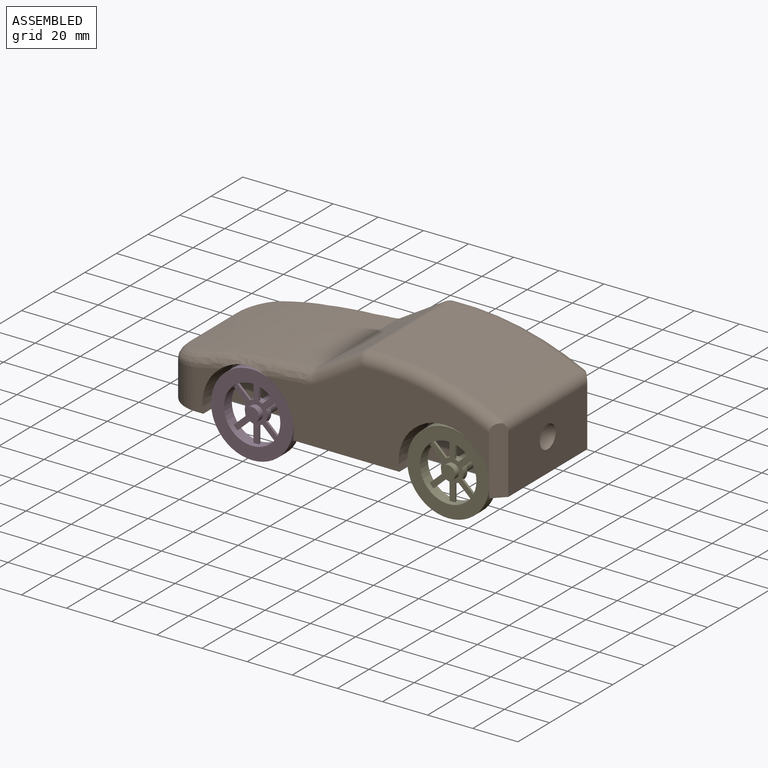
[diagram: assembled view]
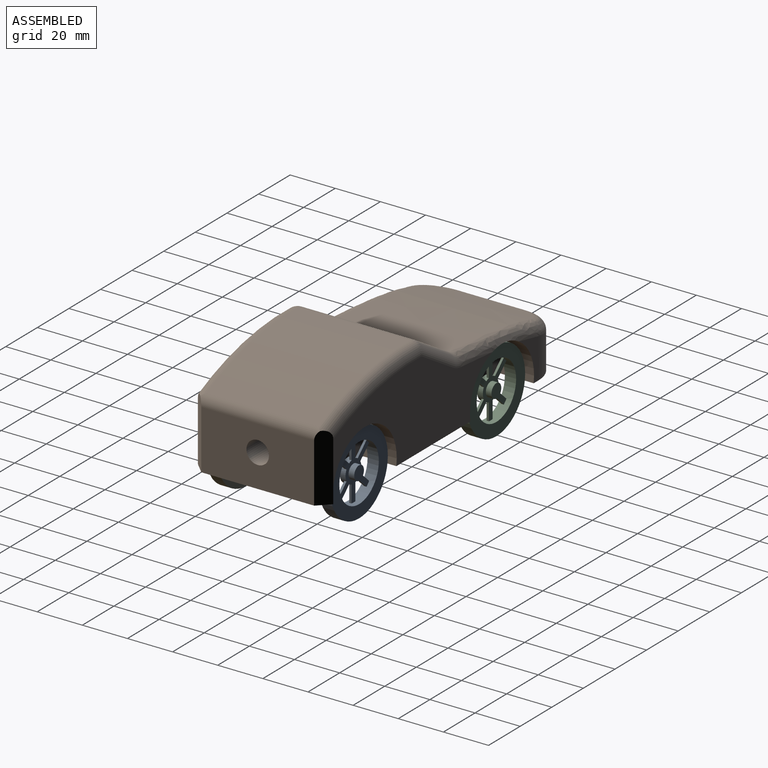
[diagram: assembled view, second angle]
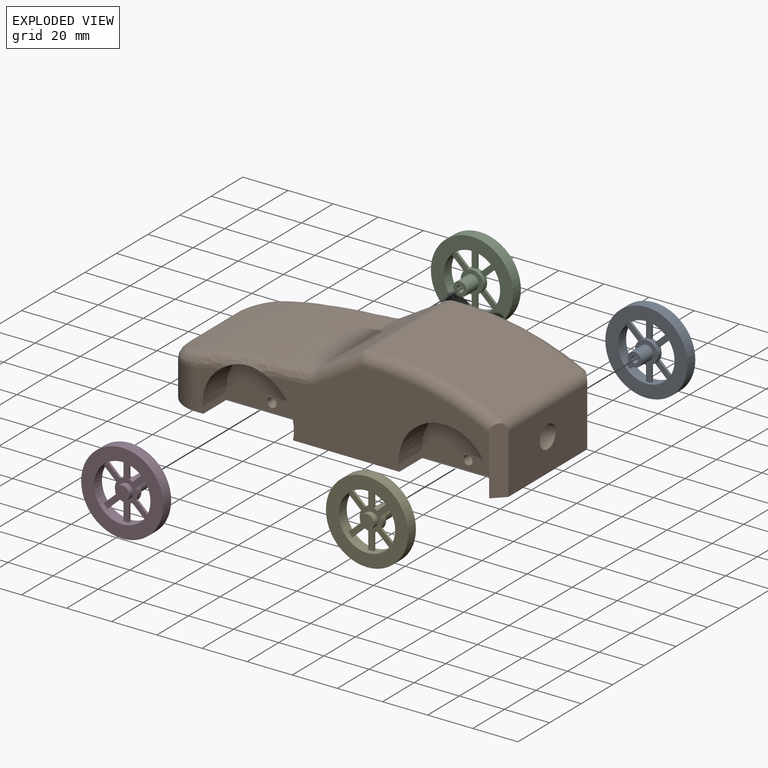
[diagram: exploded view]
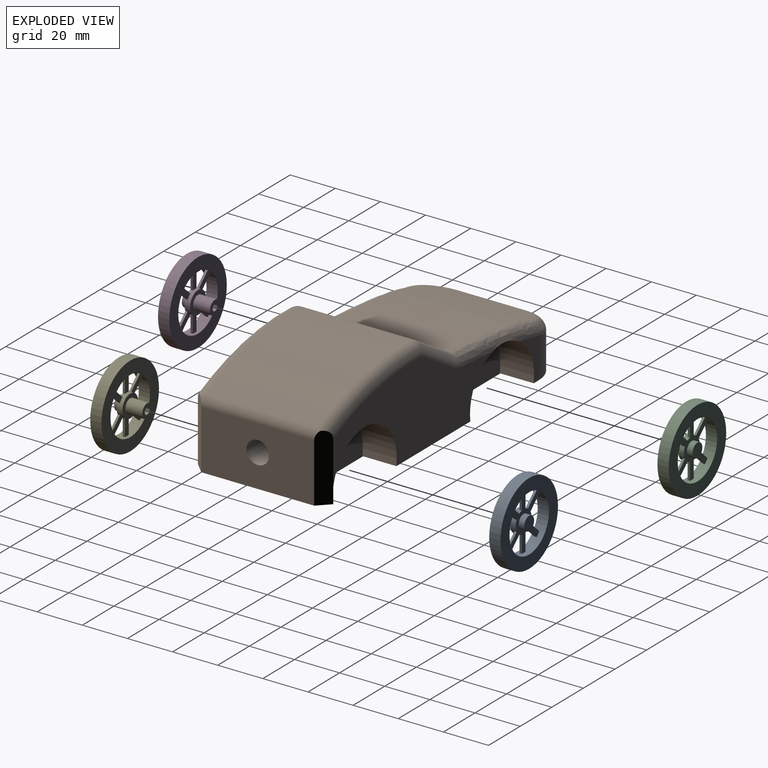
[diagram: exploded view, second angle]
ASSEMBLY  parts=5 mates=4
PART A: 31 faces, bbox 36.4x12.5x36.4 mm
  f0: cylinder r=3.1mm len=7.5mm, axis (0,-1,0), area 146.1mm2, adj f2,f5
  f1: cylinder r=1.5mm len=10mm, axis (0,-1,0), area 94.2mm2, adj f2,f3
  f2: plane 6.2x6.2mm, normal (0,-1,0), area 23.1mm2, adj f0,f1
  f3: plane 3x3mm, normal (0,-1,0), area 7.1mm2, adj f1
  f4: cylinder r=5mm len=10mm, axis (0,1,0), area 64mm2, adj f5,f6,f9,f10,f11,f12,f13,f14
  f5: plane 10x10mm, normal (0,-1,0), area 48.3mm2, adj f0,f4
  f6: plane 25.02x19.87mm, normal (0,1,0), area 156.8mm2, adj f4,f8,f9,f10,f12,f13,f15,f16
  f7: plane 6.18x6.18mm, normal (0,1,0), area 30mm2, adj f8
  f8: cylinder r=3.09mm len=6.18mm, axis (0,-1,0), area 48.5mm2, adj f6,f7
  f9: plane 5.55x5.17mm, normal (0.68,0,-0.73), area 7.6mm2, adj f4,f6,f11,f27
  f10: plane 5.55x5.17mm, normal (-0.68,0,0.73), area 7.6mm2, adj f4,f6,f11,f27
  f11: plane 7.19x6.93mm, normal (0,-1,0), area 18.1mm2, adj f4,f9,f10,f27
  f12: plane 7.59x1mm, normal (1,0,0), area 7.6mm2, adj f4,f6,f14,f27
  f13: plane 7.59x1mm, normal (-1,0,0), area 7.6mm2, adj f4,f6,f14,f27
  f14: plane 7.65x2.4mm, normal (0,-1,0), area 18.1mm2, adj f4,f12,f13,f27
  f15: plane 5.55x5.17mm, normal (-0.68,0,-0.73), area 7.6mm2, adj f4,f6,f17,f27
  f16: plane 5.55x5.17mm, normal (0.68,0,0.73), area 7.6mm2, adj f4,f6,f17,f27
  f17: plane 7.19x6.93mm, normal (0,-1,0), area 18.1mm2, adj f4,f15,f16,f27
  f18: plane 5.55x5.17mm, normal (-0.68,0,0.73), area 7.6mm2, adj f4,f6,f20,f27
  f19: plane 5.55x5.17mm, normal (0.68,0,-0.73), area 7.6mm2, adj f4,f6,f20,f27
  f20: plane 7.19x6.93mm, normal (0,-1,0), area 18.1mm2, adj f4,f18,f19,f27
  f21: plane 7.59x1mm, normal (-1,0,0), area 7.6mm2, adj f4,f6,f23,f27
  f22: plane 7.59x1mm, normal (1,0,0), area 7.6mm2, adj f4,f6,f23,f27
  f23: plane 7.65x2.4mm, normal (0,-1,0), area 18.1mm2, adj f4,f21,f22,f27
  f24: plane 5.55x5.17mm, normal (-0.68,0,-0.73), area 7.6mm2, adj f4,f6,f26,f27
  f25: plane 5.55x5.17mm, normal (0.68,0,0.73), area 7.6mm2, adj f4,f6,f26,f27
  f26: plane 7.19x6.93mm, normal (0,-1,0), area 18.1mm2, adj f4,f24,f25,f27
  f27: cylinder r=12.5mm len=25mm, axis (0,-1,0), area 378.3mm2, adj f6,f9,f10,f11,f12,f13,f14,f15
  f28: cylinder r=18.2mm len=36.4mm, axis (0,-1,0), area 571.8mm2, adj f29,f30
  f29: plane 36.4x36.4mm, normal (0,1,0), area 549.7mm2, adj f27,f28
  f30: plane 36.4x36.4mm, normal (0,-1,0), area 549.7mm2, adj f27,f28
PART B: 44 faces, bbox 153.8x60.8x53.7 mm
  f0: plane 98.89x37.93mm, normal (0,-1,0), area 2081.8mm2, adj f6,f17,f19,f21,f32,f34,f36,f40
  f1: plane 20.34x12.6mm, normal (0,1,0), area 93.5mm2, adj f6,f13,f23,f35
  f2: plane 20.03x10.86mm, normal (0,-1,0), area 85.9mm2, adj f6,f12,f21,f32
  f3: plane 50x26.1mm, normal (1,0,0), area 1226.5mm2, adj f6,f10,f16,f17,f42
  f4: plane 30x14.98mm, normal (-1,0,0), area 449.3mm2, adj f6,f12,f13,f31
  f5: plane 100.84x37.93mm, normal (0,1,0), area 2129.4mm2, adj f6,f16,f23,f25,f35,f37,f39,f43
  f6: plane 150x60mm, normal (0,0,-1), area 6485.8mm2, adj f0,f1,f2,f3,f4,f5,f12,f13
  f7: cylinder r=121.63mm len=58.25mm, axis (0,-1,0), area 3006.7mm2, adj f15,f40,f42,f43
  f8: extruded ~60.42x50mm, area 2959.5mm2, adj f14,f30,f31,f32,f33,f35
  f9: plane 50x20.25mm, normal (-0.52,0,0.85), area 1185mm2, adj f14,f15,f36,f39
  f10: cylinder r=5mm len=50mm, axis (1,0,0), area 1570.8mm2, adj f3,f11
  f11: plane 10x10mm, normal (1,0,0), area 78.5mm2, adj f10
  f12: cylinder r=15mm len=17.67mm, axis (0,0,-1), area 384.6mm2, adj f2,f4,f6,f30
  f13: cylinder r=15mm len=17.67mm, axis (0,0,1), area 384.6mm2, adj f1,f4,f6,f33
  f14: cylinder r=5mm len=50mm, axis (0,-1,0), area 118.5mm2, adj f8,f9,f34,f37
  f15: cylinder r=5mm len=50mm, axis (0,-1,0), area 126.5mm2, adj f7,f9,f38,f41
  f16: plane 30.46x5.73mm, normal (0.71,0.71,0), area 204.8mm2, adj f3,f5,f6,f26,f42,f43
  f17: plane 30.46x5.73mm, normal (0.71,-0.71,0), area 204.8mm2, adj f0,f3,f6,f18,f40,f42
  f18: plane 15x7.95mm, normal (-1,0,0), area 119.2mm2, adj f6,f17,f19,f20
  f19: cylinder r=20.27mm len=40.15mm, axis (0,-1,0), area 955.4mm2, adj f0,f6,f18,f20
  f20: plane 40.15x24.25mm, normal (0,-1,0), area 791.1mm2, adj f6,f18,f19,f28
  f21: cylinder r=20.27mm len=40.54mm, axis (0,-1,0), area 1075.3mm2, adj f0,f2,f6,f22,f32
  f22: plane 40.54x24.25mm, normal (0,-1,0), area 793mm2, adj f6,f21,f29
  f23: cylinder r=20.27mm len=40.55mm, axis (0,1,0), area 1048mm2, adj f1,f5,f6,f24,f35
  f24: plane 40.55x23.35mm, normal (0,1,0), area 757.3mm2, adj f6,f23,f29
  f25: cylinder r=20.27mm len=40.15mm, axis (0,1,0), area 941.6mm2, adj f5,f6,f26,f27
  f26: plane 15x7.05mm, normal (-1,0,0), area 105.7mm2, adj f6,f16,f25,f27
  f27: plane 40.15x23.35mm, normal (0,1,0), area 755.1mm2, adj f6,f25,f26,f28
  f28: cylinder r=2mm len=30mm, axis (0,-1,0), area 377mm2, adj f20,f27
  f29: cylinder r=2mm len=30mm, axis (0,-1,0), area 377mm2, adj f22,f24
  f30: bspline ~18.31x16.71mm, area 145mm2, adj f8,f12,f31,f32
  f31: cylinder r=5mm len=30mm, axis (0,-1,0), area 194.2mm2, adj f4,f8,f30,f33
  f32: bspline ~60.1x13.27mm, area 396.3mm2, adj f0,f2,f8,f21,f30,f34
  f33: bspline ~18.31x16.71mm, area 145mm2, adj f8,f13,f31,f35
  f34: torus R=10mm, axis (0,1,0), area 25.4mm2, adj f0,f14,f32,f36
  f35: bspline ~60.1x13.27mm, area 396.3mm2, adj f1,f5,f8,f23,f33,f37
  f36: cylinder r=5mm len=22.85mm, axis (0.85,0,0.52), area 186.1mm2, adj f0,f9,f34,f38
  f37: torus R=10mm, axis (0,1,0), area 25.4mm2, adj f5,f14,f35,f39
  f38: sphere r=5mm, area 12.6mm2, adj f15,f36,f40
  f39: cylinder r=5mm len=22.85mm, axis (0.85,0,0.52), area 186.1mm2, adj f5,f9,f37,f41
  f40: torus R=116.63mm, axis (0,1,0), area 466.5mm2, adj f0,f7,f17,f38,f42
  f41: sphere r=5mm, area 12.6mm2, adj f15,f39,f43
  f42: cylinder r=5mm len=53.04mm, axis (0,-1,0), area 287.6mm2, adj f3,f7,f16,f17,f40,f43
  f43: torus R=116.63mm, axis (0,1,0), area 466.5mm2, adj f5,f7,f16,f41,f42
PART C: same geometry as A
PART D: 31 faces, bbox 36.4x12.5x36.4 mm
  f0: cylinder r=3.1mm len=7.5mm, axis (0,1,0), area 146.1mm2, adj f2,f5
  f1: cylinder r=1.5mm len=10mm, axis (0,1,0), area 94.2mm2, adj f2,f3
  f2: plane 6.2x6.2mm, normal (0,1,0), area 23.1mm2, adj f0,f1
  f3: plane 3x3mm, normal (0,1,0), area 7.1mm2, adj f1
  f4: cylinder r=5mm len=10mm, axis (0,-1,0), area 64mm2, adj f5,f6,f9,f10,f11,f12,f13,f14
  f5: plane 10x10mm, normal (0,1,0), area 48.3mm2, adj f0,f4
  f6: plane 25.02x19.87mm, normal (0,-1,0), area 156.8mm2, adj f4,f8,f9,f10,f12,f13,f15,f16
  f7: plane 6.18x6.18mm, normal (0,-1,0), area 30mm2, adj f8
  f8: cylinder r=3.09mm len=6.18mm, axis (0,1,0), area 48.5mm2, adj f6,f7
  f9: plane 5.55x5.17mm, normal (0.68,0,-0.73), area 7.6mm2, adj f4,f6,f11,f27
  f10: plane 5.55x5.17mm, normal (-0.68,0,0.73), area 7.6mm2, adj f4,f6,f11,f27
  f11: plane 7.19x6.93mm, normal (0,1,0), area 18.1mm2, adj f4,f9,f10,f27
  f12: plane 7.59x1mm, normal (1,0,0), area 7.6mm2, adj f4,f6,f14,f27
  f13: plane 7.59x1mm, normal (-1,0,0), area 7.6mm2, adj f4,f6,f14,f27
  f14: plane 7.65x2.4mm, normal (0,1,0), area 18.1mm2, adj f4,f12,f13,f27
  f15: plane 5.55x5.17mm, normal (-0.68,0,-0.73), area 7.6mm2, adj f4,f6,f17,f27
  f16: plane 5.55x5.17mm, normal (0.68,0,0.73), area 7.6mm2, adj f4,f6,f17,f27
  f17: plane 7.19x6.93mm, normal (0,1,0), area 18.1mm2, adj f4,f15,f16,f27
  f18: plane 5.55x5.17mm, normal (-0.68,0,0.73), area 7.6mm2, adj f4,f6,f20,f27
  f19: plane 5.55x5.17mm, normal (0.68,0,-0.73), area 7.6mm2, adj f4,f6,f20,f27
  f20: plane 7.19x6.93mm, normal (0,1,0), area 18.1mm2, adj f4,f18,f19,f27
  f21: plane 7.59x1mm, normal (-1,0,0), area 7.6mm2, adj f4,f6,f23,f27
  f22: plane 7.59x1mm, normal (1,0,0), area 7.6mm2, adj f4,f6,f23,f27
  f23: plane 7.65x2.4mm, normal (0,1,0), area 18.1mm2, adj f4,f21,f22,f27
  f24: plane 5.55x5.17mm, normal (-0.68,0,-0.73), area 7.6mm2, adj f4,f6,f26,f27
  f25: plane 5.55x5.17mm, normal (0.68,0,0.73), area 7.6mm2, adj f4,f6,f26,f27
  f26: plane 7.19x6.93mm, normal (0,1,0), area 18.1mm2, adj f4,f24,f25,f27
  f27: cylinder r=12.5mm len=25mm, axis (0,1,0), area 378.3mm2, adj f6,f9,f10,f11,f12,f13,f14,f15
  f28: cylinder r=18.2mm len=36.4mm, axis (0,1,0), area 571.8mm2, adj f29,f30
  f29: plane 36.4x36.4mm, normal (0,-1,0), area 549.7mm2, adj f27,f28
  f30: plane 36.4x36.4mm, normal (0,1,0), area 549.7mm2, adj f27,f28
PART E: same geometry as D
PLACE A t=(72.31,-4.27,-27.79)mm
PLACE B t=(-52.81,35.73,-32.03)mm
PLACE C t=(-14.58,-4.27,-28.06)mm
PLACE D t=(-14.58,-9.27,-28.06)mm
PLACE E t=(72.31,-9.27,-28.06)mm
MATE revolute A.f0 <-> B.f28  axis (0,-1,0) through (72.31,20.73,-27.79)mm
MATE revolute C.f0 <-> B.f21  axis (0,-1,0) through (-14.58,20.73,-28.06)mm
MATE revolute E.f0 <-> B.f19  axis (0,1,0) through (72.31,-9.27,-28.06)mm
MATE revolute D.f0 <-> B.f21  axis (0,1,0) through (-14.58,-9.27,-28.06)mm
